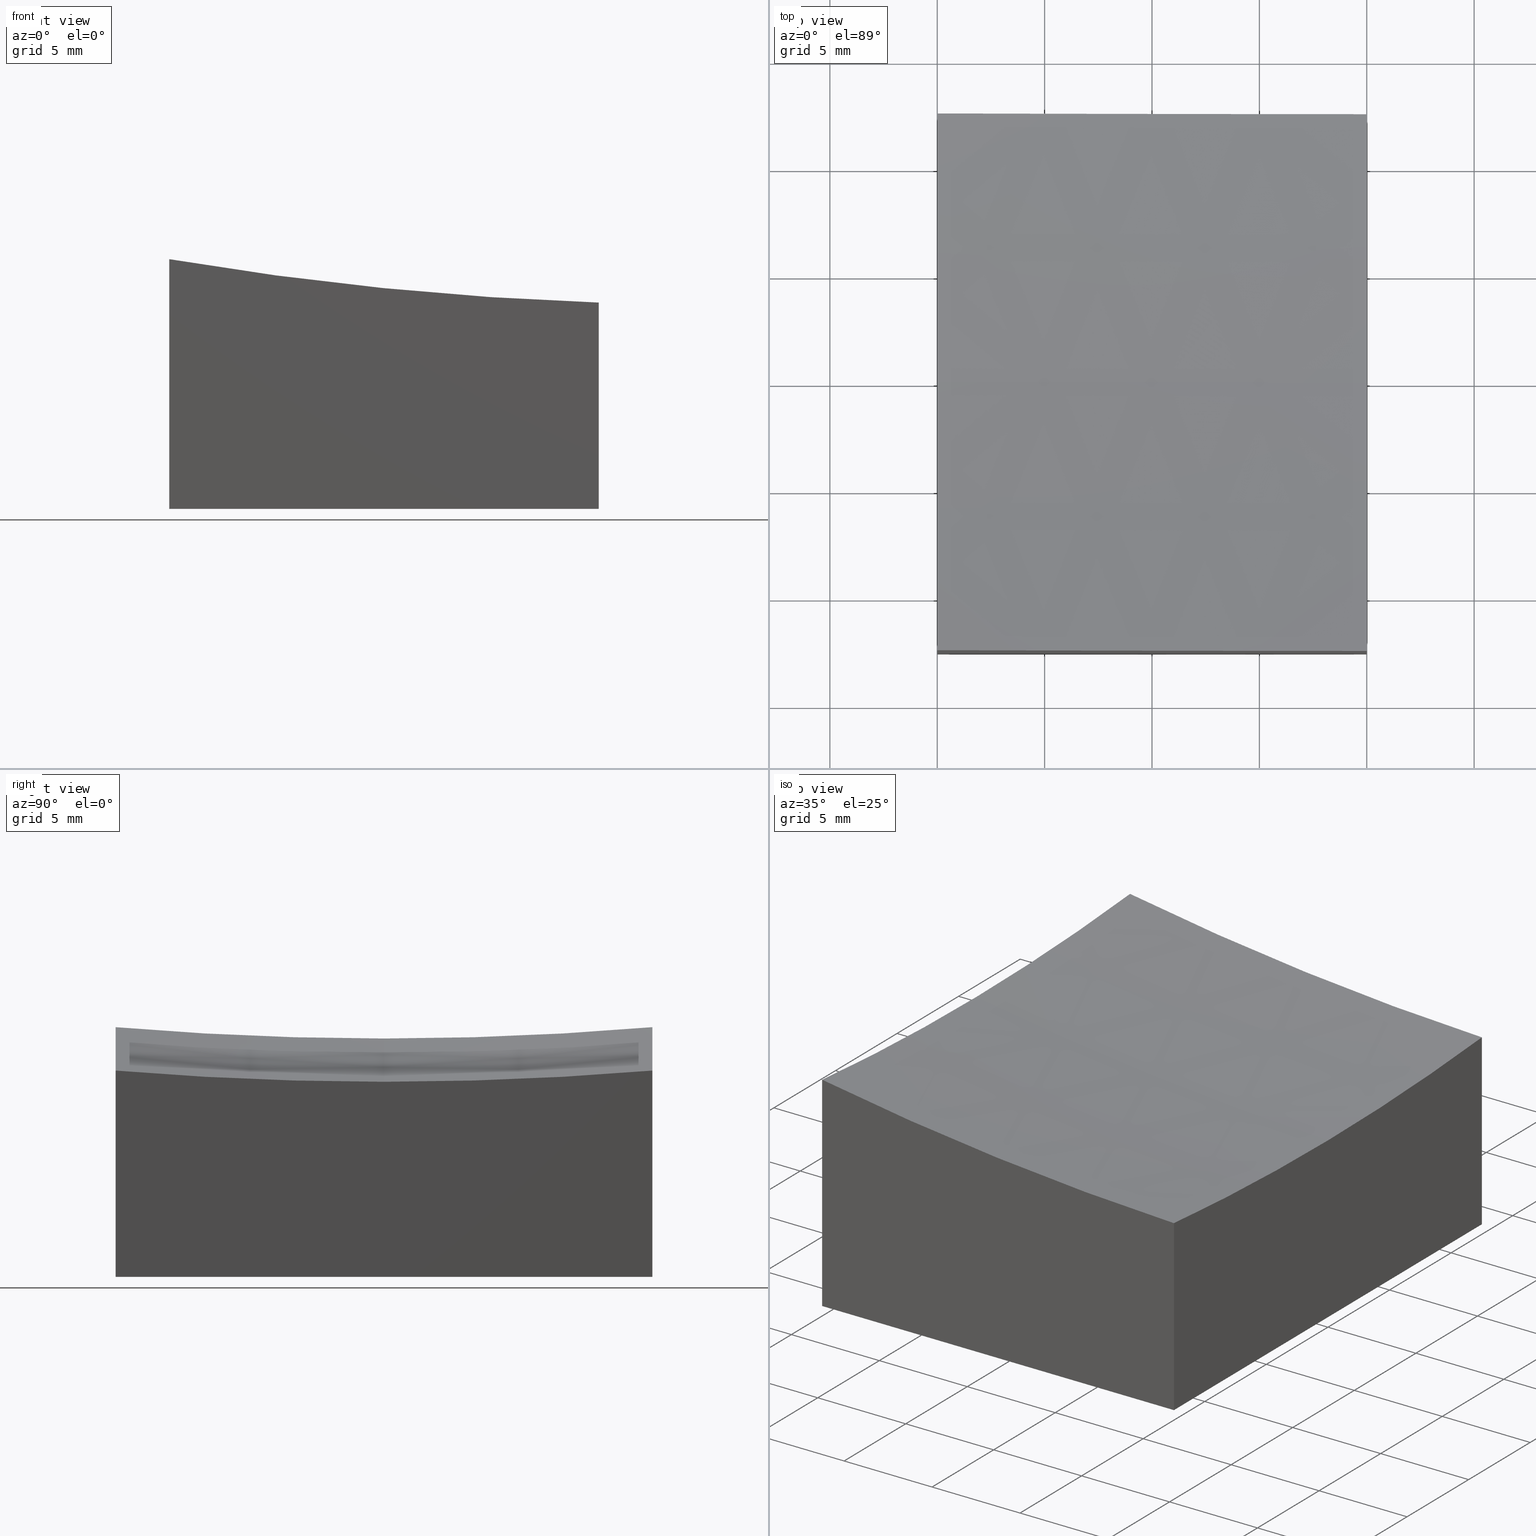
[diagram: canonical four-view strip — front | top / right | iso, engineering-drawing reading convention]
A machine part, canonical four-view strip (front | top / right | iso — engineering-drawing reading convention). The complete STEP part file that produces these views, byte-faithful:
ISO-10303-21;
HEADER;
FILE_DESCRIPTION (( 'STEP AP203' ),
    '1' );
FILE_NAME ('270644.step',
    '2024-12-24T02:22:01',
    ( '' ),
    ( '' ),
    'SwSTEP 2.0',
    'SolidWorks 2020',
    '' );
FILE_SCHEMA (( 'CONFIG_CONTROL_DESIGN' ));
ENDSEC;

DATA;
#1 = PRODUCT_RELATED_PRODUCT_CATEGORY ( 'detail', '', ( #170 ) ) ;
#2 = CARTESIAN_POINT ( 'NONE',  ( -9.999999999999998224, 12.49999999999999645, 10.00000000000000000 ) ) ;
#3 = CARTESIAN_POINT ( 'NONE',  ( 10.00000000000000178, 12.50000000000000000, -10.00000000000000000 ) ) ;
#4 = DIRECTION ( 'NONE',  ( 0.000000000000000000, -0.000000000000000000, 1.000000000000000000 ) ) ;
#5 = AXIS2_PLACEMENT_3D ( 'NONE', #258, #201, #46 ) ;
#6 = DIRECTION ( 'NONE',  ( -1.000000000000000000, -1.734723475976807094E-16, 0.000000000000000000 ) ) ;
#7 = CARTESIAN_POINT ( 'NONE',  ( -9.999999999999998224, -12.50000000000000355, 10.00000000000000000 ) ) ;
#8 = EDGE_CURVE ( 'NONE', #121, #251, #205, .T. ) ;
#9 = CARTESIAN_POINT ( 'NONE',  ( -9.999999999999998224, 0.000000000000000000, 149.0000000000000000 ) ) ;
#10 = AXIS2_PLACEMENT_3D ( 'NONE', #277, #53, #218 ) ;
#11 = CLOSED_SHELL ( 'NONE', ( #76, #207, #129, #184, #161, #39, #90 ) ) ;
#12 = CC_DESIGN_DATE_AND_TIME_ASSIGNMENT ( #172, #212, ( #89 ) ) ;
#13 = ORIENTED_EDGE ( 'NONE', *, *, #20, .T. ) ;
#14 = VERTEX_POINT ( 'NONE', #156 ) ;
#15 = AXIS2_PLACEMENT_3D ( 'NONE', #9, #203, #175 ) ;
#16 = DATE_TIME_ROLE ( 'creation_date' ) ;
#17 = ORIENTED_EDGE ( 'NONE', *, *, #81, .T. ) ;
#18 = DIRECTION ( 'NONE',  ( 0.000000000000000000, 0.000000000000000000, 1.000000000000000000 ) ) ;
#19 = ORIENTED_EDGE ( 'NONE', *, *, #81, .F. ) ;
#20 = EDGE_CURVE ( 'NONE', #121, #186, #221, .T. ) ;
#21 = CALENDAR_DATE ( 2024, 24, 12 ) ;
#22 = AXIS2_PLACEMENT_3D ( 'NONE', #223, #48, #75 ) ;
#23 = DATE_AND_TIME ( #69, #120 ) ;
#24 = SPHERICAL_SURFACE ( 'NONE', #45, 150.0000000000000284 ) ;
#25 = VECTOR ( 'NONE', #56, 1000.000000000000000 ) ;
#26 = PRODUCT_DEFINITION_SHAPE ( 'NONE', 'NONE',  #237 ) ;
#27 = DIRECTION ( 'NONE',  ( 1.000000000000000000, 1.740778375628798863E-16, 0.000000000000000000 ) ) ;
#28 = DIRECTION ( 'NONE',  ( 1.000000000000000000, 1.734723475976807094E-16, 0.000000000000000000 ) ) ;
#29 = CARTESIAN_POINT ( 'NONE',  ( 10.00000000000000178, -12.50000000000000000, -10.00000000000000000 ) ) ;
#30 =( NAMED_UNIT ( * ) PLANE_ANGLE_UNIT ( ) SI_UNIT ( $, .RADIAN. ) );
#31 = CARTESIAN_POINT ( 'NONE',  ( -9.999999999999998224, -12.50000000000000355, 10.00000000000000000 ) ) ;
#32 = EDGE_CURVE ( 'NONE', #37, #124, #197, .T. ) ;
#33 = FACE_OUTER_BOUND ( 'NONE', #165, .T. ) ;
#34 = ADVANCED_BREP_SHAPE_REPRESENTATION ( '270644', ( #65, #49 ), #188 ) ;
#35 = CIRCLE ( 'NONE', #143, 149.4782592887674753 ) ;
#36 = ORIENTED_EDGE ( 'NONE', *, *, #145, .T. ) ;
#37 = VERTEX_POINT ( 'NONE', #116 ) ;
#38 = ORIENTED_EDGE ( 'NONE', *, *, #217, .T. ) ;
#39 = ADVANCED_FACE ( 'NONE', ( #256 ), #196, .F. ) ;
#40 = AXIS2_PLACEMENT_3D ( 'NONE', #7, #72, #259 ) ;
#41 = CALENDAR_DATE ( 2024, 24, 12 ) ;
#42 = EDGE_LOOP ( 'NONE', ( #230, #187, #270, #62 ) ) ;
#43 = PERSON_AND_ORGANIZATION ( #68, #77 ) ;
#44 = PERSON_AND_ORGANIZATION ( #68, #77 ) ;
#45 = AXIS2_PLACEMENT_3D ( 'NONE', #73, #110, #276 ) ;
#46 = DIRECTION ( 'NONE',  ( -1.000000000000000000, 0.000000000000000000, 0.000000000000000000 ) ) ;
#47 = CARTESIAN_POINT ( 'NONE',  ( 10.00000000000000178, 12.50000000000000000, 10.00000000000000000 ) ) ;
#48 = DIRECTION ( 'NONE',  ( 0.000000000000000000, -1.000000000000000000, 0.000000000000000000 ) ) ;
#49 = AXIS2_PLACEMENT_3D ( 'NONE', #150, #18, #268 ) ;
#50 = DIRECTION ( 'NONE',  ( -0.000000000000000000, -0.000000000000000000, -1.000000000000000000 ) ) ;
#51 = CARTESIAN_POINT ( 'NONE',  ( -9.999999999999998224, -12.50000000000000355, -10.00000000000000000 ) ) ;
#52 = PLANE ( 'NONE',  #125 ) ;
#53 = DIRECTION ( 'NONE',  ( -1.000000000000000000, 0.000000000000000000, 0.000000000000000000 ) ) ;
#54 = APPROVAL ( #252, 'δָ��' ) ;
#55 = SPHERICAL_SURFACE ( 'NONE', #5, 150.0000000000000284 ) ;
#56 = DIRECTION ( 'NONE',  ( -0.000000000000000000, -0.000000000000000000, -1.000000000000000000 ) ) ;
#57 = AXIS2_PLACEMENT_3D ( 'NONE', #111, #160, #246 ) ;
#58 = LOCAL_TIME ( 10, 22, 1.000000000000000000, #171 ) ;
#59 = AXIS2_PLACEMENT_3D ( 'NONE', #177, #199, #98 ) ;
#60 = ORIENTED_EDGE ( 'NONE', *, *, #264, .F. ) ;
#61 = VECTOR ( 'NONE', #74, 1000.000000000000000 ) ;
#62 = ORIENTED_EDGE ( 'NONE', *, *, #108, .F. ) ;
#63 = EDGE_CURVE ( 'NONE', #251, #266, #180, .T. ) ;
#64 = PERSON_AND_ORGANIZATION ( #68, #77 ) ;
#65 = MANIFOLD_SOLID_BREP ( '�г�-��ת8', #11 ) ;
#66 = CC_DESIGN_SECURITY_CLASSIFICATION ( #89, ( #155 ) ) ;
#67 = APPROVAL_DATE_TIME ( #23, #54 ) ;
#68 = PERSON ( 'δָ��', 'δָ��', 'δָ��', ('δָ��'), ('δָ��'), ('δָ��') ) ;
#69 = CALENDAR_DATE ( 2024, 24, 12 ) ;
#70 = CARTESIAN_POINT ( 'NONE',  ( 15.00000000000002132, -12.49999999999999822, 149.0000000000000000 ) ) ;
#71 = PLANE ( 'NONE',  #85 ) ;
#72 = DIRECTION ( 'NONE',  ( 1.000000000000000000, 0.000000000000000000, 0.000000000000000000 ) ) ;
#73 = CARTESIAN_POINT ( 'NONE',  ( 15.00000000000001954, 0.000000000000000000, 149.0000000000000000 ) ) ;
#74 = DIRECTION ( 'NONE',  ( -0.000000000000000000, -0.000000000000000000, -1.000000000000000000 ) ) ;
#75 = DIRECTION ( 'NONE',  ( 0.000000000000000000, 0.000000000000000000, -1.000000000000000000 ) ) ;
#76 = ADVANCED_FACE ( 'NONE', ( #93 ), #24, .F. ) ;
#77 = ORGANIZATION ( 'δָ��', 'δָ��', '' ) ;
#78 = EDGE_LOOP ( 'NONE', ( #248, #206, #91, #225 ) ) ;
#79 = ORIENTED_EDGE ( 'NONE', *, *, #263, .F. ) ;
#80 = ORIENTED_EDGE ( 'NONE', *, *, #173, .T. ) ;
#81 = EDGE_CURVE ( 'NONE', #211, #37, #35, .T. ) ;
#82 = COORDINATED_UNIVERSAL_TIME_OFFSET ( 8, 0, .AHEAD. ) ;
#83 = ORIENTED_EDGE ( 'NONE', *, *, #168, .T. ) ;
#84 = MECHANICAL_CONTEXT ( 'NONE', #137, 'mechanical' ) ;
#85 = AXIS2_PLACEMENT_3D ( 'NONE', #97, #95, #6 ) ;
#86 = APPROVAL_DATE_TIME ( #123, #232 ) ;
#87 = PERSON_AND_ORGANIZATION ( #68, #77 ) ;
#88 = COORDINATED_UNIVERSAL_TIME_OFFSET ( 8, 0, .AHEAD. ) ;
#89 = SECURITY_CLASSIFICATION ( '', '', #127 ) ;
#90 = ADVANCED_FACE ( 'NONE', ( #153 ), #55, .F. ) ;
#91 = ORIENTED_EDGE ( 'NONE', *, *, #63, .T. ) ;
#92 = LINE ( 'NONE', #257, #204 ) ;
#93 = FACE_OUTER_BOUND ( 'NONE', #115, .T. ) ;
#94 = CARTESIAN_POINT ( 'NONE',  ( 10.00000000000000178, -12.50000000000000000, 10.00000000000000000 ) ) ;
#95 = DIRECTION ( 'NONE',  ( -1.734723475976807094E-16, 1.000000000000000000, 0.000000000000000000 ) ) ;
#96 = PLANE ( 'NONE',  #40 ) ;
#97 = CARTESIAN_POINT ( 'NONE',  ( 10.00000000000000178, -12.50000000000000000, 10.00000000000000000 ) ) ;
#98 = DIRECTION ( 'NONE',  ( 0.000000000000000000, 0.000000000000000000, -1.000000000000000000 ) ) ;
#99 = ORIENTED_EDGE ( 'NONE', *, *, #32, .T. ) ;
#100 = CC_DESIGN_PERSON_AND_ORGANIZATION_ASSIGNMENT ( #87, #104, ( #170 ) ) ;
#101 = VERTEX_POINT ( 'NONE', #219 ) ;
#102 = ORIENTED_EDGE ( 'NONE', *, *, #214, .T. ) ;
#103 = APPROVAL_ROLE ( '' ) ;
#104 = PERSON_AND_ORGANIZATION_ROLE ( 'design_owner' ) ;
#105 = UNCERTAINTY_MEASURE_WITH_UNIT (LENGTH_MEASURE( 1.000000000000000082E-05 ), #241, 'distance_accuracy_value', 'NONE');
#106 = LOCAL_TIME ( 10, 22, 1.000000000000000000, #107 ) ;
#107 = COORDINATED_UNIVERSAL_TIME_OFFSET ( 8, 0, .AHEAD. ) ;
#108 = EDGE_CURVE ( 'NONE', #124, #14, #132, .T. ) ;
#109 = APPROVAL_PERSON_ORGANIZATION ( #253, #273, #231 ) ;
#110 = DIRECTION ( 'NONE',  ( 0.000000000000000000, 1.000000000000000000, -0.000000000000000000 ) ) ;
#111 = CARTESIAN_POINT ( 'NONE',  ( 10.00000000000000178, 0.000000000000000000, 149.0000000000000000 ) ) ;
#112 = FACE_OUTER_BOUND ( 'NONE', #167, .T. ) ;
#113 = FACE_OUTER_BOUND ( 'NONE', #228, .T. ) ;
#114 = APPLICATION_CONTEXT ( 'configuration controlled 3d designs of mechanical parts and assemblies' ) ;
#115 = EDGE_LOOP ( 'NONE', ( #163, #80, #265, #249 ) ) ;
#116 = CARTESIAN_POINT ( 'NONE',  ( -10.00000000000000000, -12.50000000000000355, 1.627173468105036491 ) ) ;
#117 = CIRCLE ( 'NONE', #22, 150.0000000000000284 ) ;
#118 = DIRECTION ( 'NONE',  ( -0.000000000000000000, -1.000000000000000000, -0.000000000000000000 ) ) ;
#119 = LINE ( 'NONE', #51, #178 ) ;
#120 = LOCAL_TIME ( 10, 22, 1.000000000000000000, #191 ) ;
#121 = VERTEX_POINT ( 'NONE', #216 ) ;
#122 = ORIENTED_EDGE ( 'NONE', *, *, #32, .F. ) ;
#123 = DATE_AND_TIME ( #271, #106 ) ;
#124 = VERTEX_POINT ( 'NONE', #243 ) ;
#125 = AXIS2_PLACEMENT_3D ( 'NONE', #135, #138, #28 ) ;
#126 = ORIENTED_EDGE ( 'NONE', *, *, #173, .F. ) ;
#127 = SECURITY_CLASSIFICATION_LEVEL ( 'unclassified' ) ;
#128 = APPROVAL_STATUS ( 'not_yet_approved' ) ;
#129 = ADVANCED_FACE ( 'NONE', ( #112 ), #71, .F. ) ;
#130 = DIRECTION ( 'NONE',  ( 1.000000000000000000, 1.734723475976807094E-16, -0.000000000000000000 ) ) ;
#131 = AXIS2_PLACEMENT_3D ( 'NONE', #238, #4, #174 ) ;
#132 = LINE ( 'NONE', #29, #255 ) ;
#133 = LINE ( 'NONE', #94, #25 ) ;
#134 = CC_DESIGN_PERSON_AND_ORGANIZATION_ASSIGNMENT ( #64, #147, ( #89 ) ) ;
#135 = CARTESIAN_POINT ( 'NONE',  ( 10.00000000000000178, 12.50000000000000000, 10.00000000000000000 ) ) ;
#136 = DIRECTION ( 'NONE',  ( 0.000000000000000000, 1.000000000000000000, 0.000000000000000000 ) ) ;
#137 = APPLICATION_CONTEXT ( 'configuration controlled 3d designs of mechanical parts and assemblies' ) ;
#138 = DIRECTION ( 'NONE',  ( 1.734723475976807094E-16, -1.000000000000000000, 0.000000000000000000 ) ) ;
#139 = AXIS2_PLACEMENT_3D ( 'NONE', #179, #261, #158 ) ;
#140 = LINE ( 'NONE', #3, #267 ) ;
#141 = CC_DESIGN_DATE_AND_TIME_ASSIGNMENT ( #195, #16, ( #237 ) ) ;
#142 = ORIENTED_EDGE ( 'NONE', *, *, #108, .T. ) ;
#143 = AXIS2_PLACEMENT_3D ( 'NONE', #70, #154, #176 ) ;
#144 = EDGE_LOOP ( 'NONE', ( #126, #60, #19, #146 ) ) ;
#145 = EDGE_CURVE ( 'NONE', #189, #211, #152, .T. ) ;
#146 = ORIENTED_EDGE ( 'NONE', *, *, #145, .F. ) ;
#147 = PERSON_AND_ORGANIZATION_ROLE ( 'classification_officer' ) ;
#148 = ORIENTED_EDGE ( 'NONE', *, *, #63, .F. ) ;
#149 = PERSON_AND_ORGANIZATION_ROLE ( 'creator' ) ;
#150 = CARTESIAN_POINT ( 'NONE',  ( 0.000000000000000000, 0.000000000000000000, 0.000000000000000000 ) ) ;
#151 = APPLICATION_PROTOCOL_DEFINITION ( 'international standard', 'config_control_design', 1994, #114 ) ;
#152 = CIRCLE ( 'NONE', #139, 149.9166435056495175 ) ;
#153 = FACE_OUTER_BOUND ( 'NONE', #144, .T. ) ;
#154 = DIRECTION ( 'NONE',  ( -1.734723475976807094E-16, 1.000000000000000000, 0.000000000000000000 ) ) ;
#155 = PRODUCT_DEFINITION_FORMATION_WITH_SPECIFIED_SOURCE ( '�κ�', '', #170, .NOT_KNOWN. ) ;
#156 = CARTESIAN_POINT ( 'NONE',  ( 10.00000000000000178, -12.50000000000000000, -10.00000000000000000 ) ) ;
#157 = CARTESIAN_POINT ( 'NONE',  ( 10.00000000000000178, -12.50000000000000000, -0.3946116832866386481 ) ) ;
#158 = DIRECTION ( 'NONE',  ( 0.000000000000000000, 0.000000000000000000, 1.000000000000000000 ) ) ;
#159 = ORIENTED_EDGE ( 'NONE', *, *, #181, .T. ) ;
#160 = DIRECTION ( 'NONE',  ( -1.000000000000000000, 0.000000000000000000, 0.000000000000000000 ) ) ;
#161 = ADVANCED_FACE ( 'NONE', ( #262 ), #52, .F. ) ;
#162 = CIRCLE ( 'NONE', #57, 149.9166435056495175 ) ;
#163 = ORIENTED_EDGE ( 'NONE', *, *, #168, .F. ) ;
#164 = CIRCLE ( 'NONE', #59, 147.9019945774904272 ) ;
#165 = EDGE_LOOP ( 'NONE', ( #122, #209, #83, #13, #38 ) ) ;
#166 = APPROVAL_DATE_TIME ( #208, #273 ) ;
#167 = EDGE_LOOP ( 'NONE', ( #79, #17, #99, #142 ) ) ;
#168 = EDGE_CURVE ( 'NONE', #101, #121, #193, .T. ) ;
#169 = APPROVAL_PERSON_ORGANIZATION ( #210, #54, #103 ) ;
#170 = PRODUCT ( '270644', '270644', '', ( #84 ) ) ;
#171 = COORDINATED_UNIVERSAL_TIME_OFFSET ( 8, 0, .AHEAD. ) ;
#172 = DATE_AND_TIME ( #41, #224 ) ;
#173 = EDGE_CURVE ( 'NONE', #101, #189, #117, .T. ) ;
#174 = DIRECTION ( 'NONE',  ( 1.000000000000000000, 0.000000000000000000, -0.000000000000000000 ) ) ;
#175 = DIRECTION ( 'NONE',  ( 0.000000000000000000, 0.000000000000000000, -1.000000000000000000 ) ) ;
#176 = DIRECTION ( 'NONE',  ( -1.000000000000000000, -1.740778375628798863E-16, 0.000000000000000000 ) ) ;
#177 = CARTESIAN_POINT ( 'NONE',  ( -9.999999999999998224, 0.000000000000000000, 149.0000000000000000 ) ) ;
#178 = VECTOR ( 'NONE', #118, 1000.000000000000000 ) ;
#179 = CARTESIAN_POINT ( 'NONE',  ( 10.00000000000000178, 0.000000000000000000, 149.0000000000000000 ) ) ;
#180 = LINE ( 'NONE', #47, #260 ) ;
#181 = EDGE_CURVE ( 'NONE', #251, #189, #162, .T. ) ;
#182 = DIRECTION ( 'NONE',  ( -1.000000000000000000, -1.734723475976807094E-16, 0.000000000000000000 ) ) ;
#183 = CC_DESIGN_APPROVAL ( #273, ( #155 ) ) ;
#184 = ADVANCED_FACE ( 'NONE', ( #113 ), #239, .F. ) ;
#185 = CC_DESIGN_PERSON_AND_ORGANIZATION_ASSIGNMENT ( #44, #274, ( #155 ) ) ;
#186 = VERTEX_POINT ( 'NONE', #198 ) ;
#187 = ORIENTED_EDGE ( 'NONE', *, *, #227, .F. ) ;
#188 =( GEOMETRIC_REPRESENTATION_CONTEXT ( 3 ) GLOBAL_UNCERTAINTY_ASSIGNED_CONTEXT ( ( #105 ) ) GLOBAL_UNIT_ASSIGNED_CONTEXT ( ( #241, #30, #202 ) ) REPRESENTATION_CONTEXT ( 'NONE', 'WORKASPACE' ) );
#189 = VERTEX_POINT ( 'NONE', #220 ) ;
#190 = CC_DESIGN_PERSON_AND_ORGANIZATION_ASSIGNMENT ( #235, #149, ( #237 ) ) ;
#191 = COORDINATED_UNIVERSAL_TIME_OFFSET ( 8, 0, .AHEAD. ) ;
#192 = PERSON_AND_ORGANIZATION_ROLE ( 'creator' ) ;
#193 = CIRCLE ( 'NONE', #15, 147.9019945774904272 ) ;
#194 = CALENDAR_DATE ( 2024, 24, 12 ) ;
#195 = DATE_AND_TIME ( #21, #58 ) ;
#196 = PLANE ( 'NONE',  #131 ) ;
#197 = LINE ( 'NONE', #31, #275 ) ;
#198 = CARTESIAN_POINT ( 'NONE',  ( -9.999999999999998224, 12.49999999999999645, -10.00000000000000000 ) ) ;
#199 = DIRECTION ( 'NONE',  ( 1.000000000000000000, 0.000000000000000000, 0.000000000000000000 ) ) ;
#200 = LOCAL_TIME ( 10, 22, 1.000000000000000000, #82 ) ;
#201 = DIRECTION ( 'NONE',  ( 0.000000000000000000, 1.000000000000000000, -0.000000000000000000 ) ) ;
#202 =( NAMED_UNIT ( * ) SI_UNIT ( $, .STERADIAN. ) SOLID_ANGLE_UNIT ( ) );
#203 = DIRECTION ( 'NONE',  ( 1.000000000000000000, 0.000000000000000000, 0.000000000000000000 ) ) ;
#204 = VECTOR ( 'NONE', #136, 1000.000000000000000 ) ;
#205 = CIRCLE ( 'NONE', #242, 149.4782592887674753 ) ;
#206 = ORIENTED_EDGE ( 'NONE', *, *, #8, .T. ) ;
#207 = ADVANCED_FACE ( 'NONE', ( #33 ), #96, .F. ) ;
#208 = DATE_AND_TIME ( #194, #200 ) ;
#209 = ORIENTED_EDGE ( 'NONE', *, *, #264, .T. ) ;
#210 = PERSON_AND_ORGANIZATION ( #68, #77 ) ;
#211 = VERTEX_POINT ( 'NONE', #157 ) ;
#212 = DATE_TIME_ROLE ( 'classification_date' ) ;
#213 = APPROVAL_ROLE ( '' ) ;
#214 = EDGE_CURVE ( 'NONE', #14, #266, #92, .T. ) ;
#215 = DIRECTION ( 'NONE',  ( -0.000000000000000000, -0.000000000000000000, -1.000000000000000000 ) ) ;
#216 = CARTESIAN_POINT ( 'NONE',  ( -9.999999999999996447, 12.49999999999999645, 1.627173468105036491 ) ) ;
#217 = EDGE_CURVE ( 'NONE', #186, #124, #119, .T. ) ;
#218 = DIRECTION ( 'NONE',  ( 0.000000000000000000, 0.000000000000000000, 1.000000000000000000 ) ) ;
#219 = CARTESIAN_POINT ( 'NONE',  ( -9.999999999999998224, 0.000000000000000000, 1.098005422509568119 ) ) ;
#220 = CARTESIAN_POINT ( 'NONE',  ( 10.00000000000000178, 0.000000000000000000, -0.9166435056495170208 ) ) ;
#221 = LINE ( 'NONE', #2, #61 ) ;
#222 = CARTESIAN_POINT ( 'NONE',  ( 10.00000000000000178, 12.50000000000000000, -10.00000000000000000 ) ) ;
#223 = CARTESIAN_POINT ( 'NONE',  ( 15.00000000000001954, 0.000000000000000000, 149.0000000000000000 ) ) ;
#224 = LOCAL_TIME ( 10, 22, 1.000000000000000000, #88 ) ;
#225 = ORIENTED_EDGE ( 'NONE', *, *, #227, .T. ) ;
#226 = ORIENTED_EDGE ( 'NONE', *, *, #263, .T. ) ;
#227 = EDGE_CURVE ( 'NONE', #266, #186, #140, .T. ) ;
#228 = EDGE_LOOP ( 'NONE', ( #148, #159, #36, #226, #102 ) ) ;
#229 = PERSON_AND_ORGANIZATION ( #68, #77 ) ;
#230 = ORIENTED_EDGE ( 'NONE', *, *, #217, .F. ) ;
#231 = APPROVAL_ROLE ( '' ) ;
#232 = APPROVAL ( #128, 'δָ��' ) ;
#233 = APPROVAL_STATUS ( 'not_yet_approved' ) ;
#234 = DESIGN_CONTEXT ( 'detailed design', #114, 'design' ) ;
#235 = PERSON_AND_ORGANIZATION ( #68, #77 ) ;
#236 = CC_DESIGN_APPROVAL ( #232, ( #89 ) ) ;
#237 = PRODUCT_DEFINITION ( 'δ֪', '', #155, #234 ) ;
#238 = CARTESIAN_POINT ( 'NONE',  ( 0.000000000000000000, 0.000000000000000000, -10.00000000000000000 ) ) ;
#239 = PLANE ( 'NONE',  #10 ) ;
#240 = DIRECTION ( 'NONE',  ( 1.734723475976807094E-16, -1.000000000000000000, 0.000000000000000000 ) ) ;
#241 =( LENGTH_UNIT ( ) NAMED_UNIT ( * ) SI_UNIT ( .MILLI., .METRE. ) );
#242 = AXIS2_PLACEMENT_3D ( 'NONE', #245, #240, #27 ) ;
#243 = CARTESIAN_POINT ( 'NONE',  ( -9.999999999999998224, -12.50000000000000355, -10.00000000000000000 ) ) ;
#244 = CARTESIAN_POINT ( 'NONE',  ( 10.00000000000000178, 12.50000000000000000, -0.3946116832866386481 ) ) ;
#245 = CARTESIAN_POINT ( 'NONE',  ( 15.00000000000001776, 12.50000000000000178, 149.0000000000000000 ) ) ;
#246 = DIRECTION ( 'NONE',  ( 0.000000000000000000, 0.000000000000000000, 1.000000000000000000 ) ) ;
#247 = APPROVAL_PERSON_ORGANIZATION ( #229, #232, #213 ) ;
#248 = ORIENTED_EDGE ( 'NONE', *, *, #20, .F. ) ;
#249 = ORIENTED_EDGE ( 'NONE', *, *, #8, .F. ) ;
#250 = SHAPE_DEFINITION_REPRESENTATION ( #26, #34 ) ;
#251 = VERTEX_POINT ( 'NONE', #244 ) ;
#252 = APPROVAL_STATUS ( 'not_yet_approved' ) ;
#253 = PERSON_AND_ORGANIZATION ( #68, #77 ) ;
#254 = CC_DESIGN_PERSON_AND_ORGANIZATION_ASSIGNMENT ( #43, #192, ( #155 ) ) ;
#255 = VECTOR ( 'NONE', #130, 1000.000000000000000 ) ;
#256 = FACE_OUTER_BOUND ( 'NONE', #42, .T. ) ;
#257 = CARTESIAN_POINT ( 'NONE',  ( 10.00000000000000178, -12.50000000000000000, -10.00000000000000000 ) ) ;
#258 = CARTESIAN_POINT ( 'NONE',  ( 15.00000000000001954, 0.000000000000000000, 149.0000000000000000 ) ) ;
#259 = DIRECTION ( 'NONE',  ( 0.000000000000000000, 0.000000000000000000, -1.000000000000000000 ) ) ;
#260 = VECTOR ( 'NONE', #215, 1000.000000000000000 ) ;
#261 = DIRECTION ( 'NONE',  ( -1.000000000000000000, 0.000000000000000000, 0.000000000000000000 ) ) ;
#262 = FACE_OUTER_BOUND ( 'NONE', #78, .T. ) ;
#263 = EDGE_CURVE ( 'NONE', #211, #14, #133, .T. ) ;
#264 = EDGE_CURVE ( 'NONE', #37, #101, #164, .T. ) ;
#265 = ORIENTED_EDGE ( 'NONE', *, *, #181, .F. ) ;
#266 = VERTEX_POINT ( 'NONE', #222 ) ;
#267 = VECTOR ( 'NONE', #182, 1000.000000000000000 ) ;
#268 = DIRECTION ( 'NONE',  ( 1.000000000000000000, 0.000000000000000000, 0.000000000000000000 ) ) ;
#269 = APPLICATION_PROTOCOL_DEFINITION ( 'international standard', 'config_control_design', 1994, #137 ) ;
#270 = ORIENTED_EDGE ( 'NONE', *, *, #214, .F. ) ;
#271 = CALENDAR_DATE ( 2024, 24, 12 ) ;
#272 = CC_DESIGN_APPROVAL ( #54, ( #237 ) ) ;
#273 = APPROVAL ( #233, 'δָ��' ) ;
#274 = PERSON_AND_ORGANIZATION_ROLE ( 'design_supplier' ) ;
#275 = VECTOR ( 'NONE', #50, 1000.000000000000000 ) ;
#276 = DIRECTION ( 'NONE',  ( -1.000000000000000000, 0.000000000000000000, 0.000000000000000000 ) ) ;
#277 = CARTESIAN_POINT ( 'NONE',  ( 10.00000000000000178, -12.50000000000000000, 10.00000000000000000 ) ) ;
ENDSEC;
END-ISO-10303-21;
